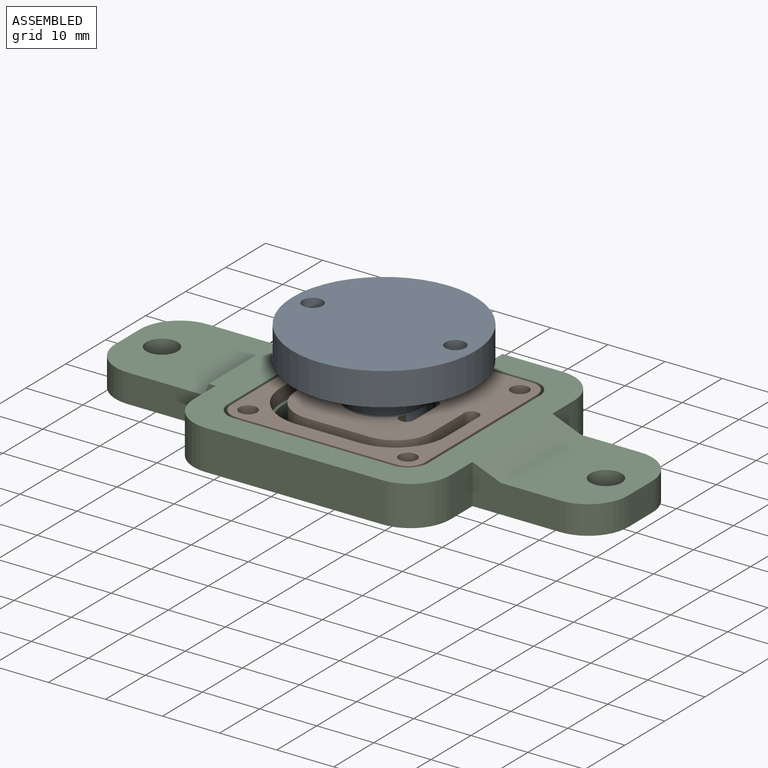
[diagram: assembled view]
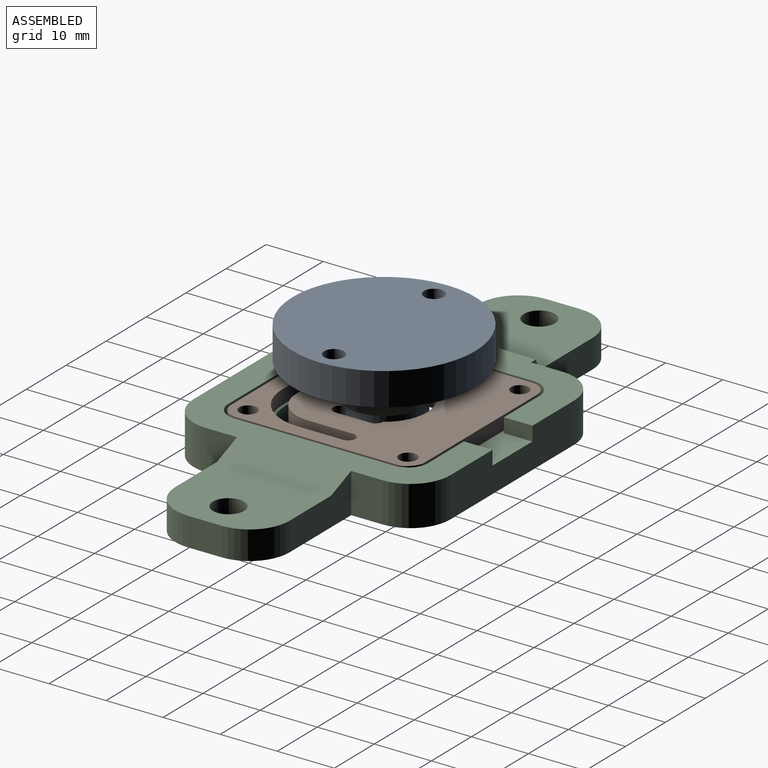
[diagram: assembled view, second angle]
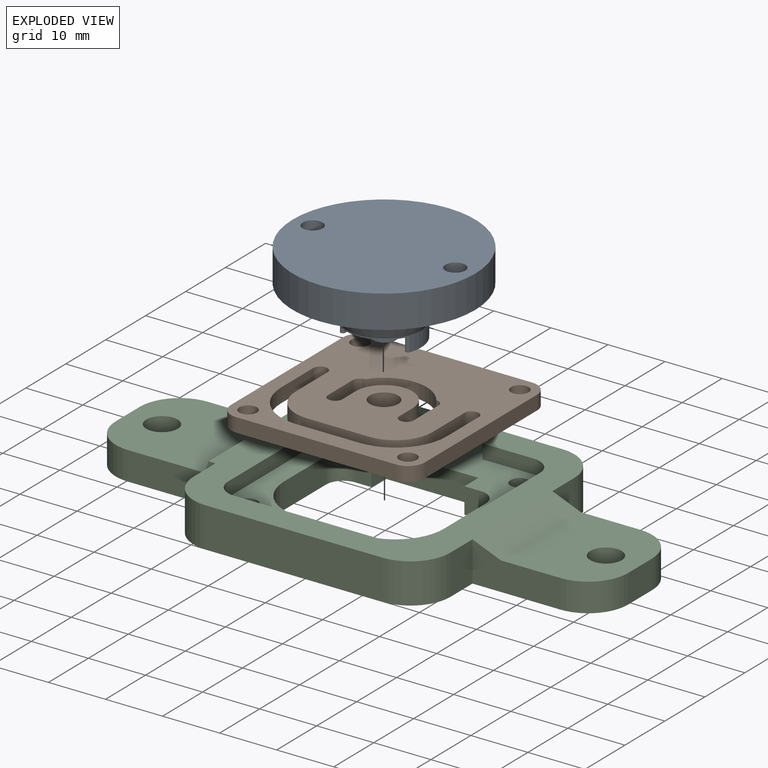
[diagram: exploded view]
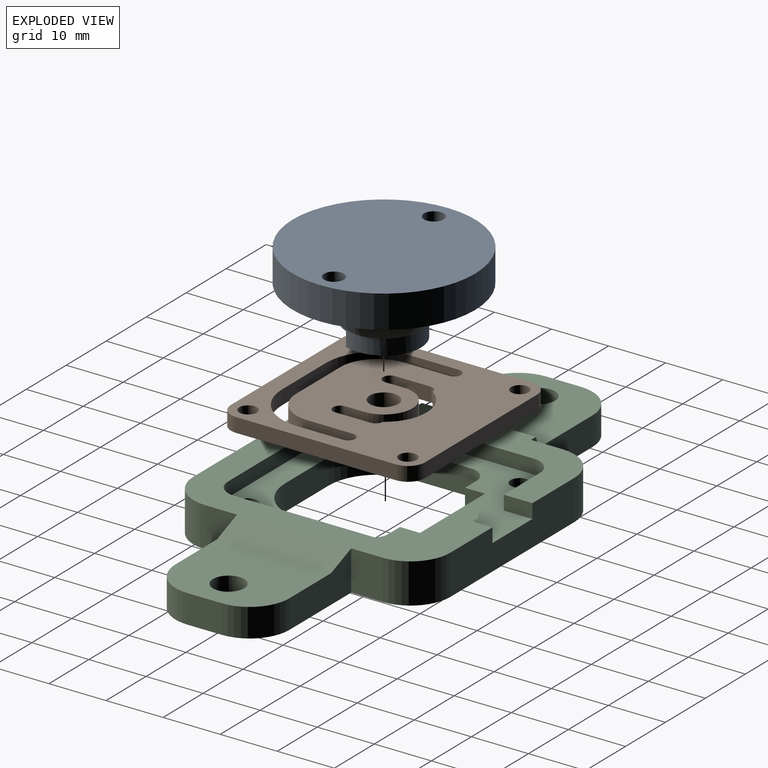
[diagram: exploded view, second angle]
ASSEMBLY  parts=3 mates=3
PART A: 18 faces, bbox 32x32x14.3 mm
  f0: plane 12.15x11.8mm, normal (0,0,-1), area 91.5mm2, adj f1,f3,f4,f5,f7,f8,f9
  f1: cylinder r=6.5mm len=13mm, axis (0,0,-1), area 71.1mm2, adj f0,f2,f8,f9,f15
  f2: plane 13x9.07mm, normal (0,0,-1), area 27.4mm2, adj f1,f3,f4,f5,f8,f9
  f3: plane 2.5x2.17mm, normal (-1,0,0), area 5.4mm2, adj f0,f2,f4,f8
  f4: cylinder r=5.3mm len=10.6mm, axis (0,0,1), area 41.6mm2, adj f0,f2,f3,f5
  f5: plane 2.5x2.17mm, normal (1,0,0), area 5.4mm2, adj f0,f2,f4,f9
  f6: plane 4.2x4.2mm, normal (0,0,-1), area 13.9mm2, adj f7
  f7: cylinder r=2.1mm len=4.2mm, axis (0,0,1), area 33mm2, adj f0,f6
  f8: cylinder r=0.4mm len=2.5mm, axis (0,0,-1), area 2.8mm2, adj f0,f1,f2,f3
  f9: cylinder r=0.4mm len=2.5mm, axis (0,0,-1), area 2.8mm2, adj f0,f1,f2,f5
  f10: cylinder r=1.75mm len=4.75mm, axis (0,0,-1), area 52.2mm2, adj f13,f17
  f11: cylinder r=1.75mm len=4.75mm, axis (0,0,-1), area 52.2mm2, adj f13,f16
  f12: cylinder r=16mm len=32mm, axis (0,0,-1), area 578.1mm2, adj f13,f14
  f13: plane 32x32mm, normal (0,0,1), area 785mm2, adj f10,f11,f12
  f14: plane 32x32mm, normal (0,0,-1), area 473.2mm2, adj f12,f15,f16,f17
  f15: cone r=9.5mm half-angle=27.3deg, axis (0,0,1), area 328.2mm2, adj f1,f14
  f16: cone r=2.75mm half-angle=45deg, axis (0,0,-1), area 20mm2, adj f11,f14
  f17: cone r=2.75mm half-angle=45deg, axis (0,0,-1), area 20mm2, adj f10,f14
PART B: 37 faces, bbox 34x34x2.5 mm
  f0: plane 28x2.5mm, normal (1,0,0), area 70mm2, adj f1,f34,f35,f36
  f1: cylinder r=3mm len=3mm, axis (0,0,-1), area 11.8mm2, adj f0,f2,f35,f36
  f2: plane 28x2.5mm, normal (0,1,0), area 70mm2, adj f1,f3,f35,f36
  f3: cylinder r=3mm len=3mm, axis (0,0,-1), area 11.8mm2, adj f2,f4,f35,f36
  f4: plane 28x2.5mm, normal (-1,0,0), area 70mm2, adj f3,f5,f35,f36
  f5: cylinder r=3mm len=3mm, axis (0,0,-1), area 11.8mm2, adj f4,f6,f35,f36
  f6: plane 28x2.5mm, normal (0,-1,0), area 70mm2, adj f5,f34,f35,f36
  f7: plane 3.29x2.5mm, normal (-1,0,0), area 8.2mm2, adj f8,f32,f35,f36
  f8: cylinder r=5mm len=10mm, axis (0,0,-1), area 39.3mm2, adj f7,f9,f35,f36
  f9: plane 3.29x2.5mm, normal (1,0,0), area 8.2mm2, adj f8,f10,f35,f36
  f10: cylinder r=1.25mm len=2.5mm, axis (0,0,-1), area 9.8mm2, adj f9,f11,f35,f36
  f11: plane 6.19x2.5mm, normal (-1,0,0), area 15.5mm2, adj f10,f12,f35,f36
  f12: cylinder r=1.25mm len=2.5mm, axis (0,0,-1), area 4.9mm2, adj f11,f13,f35,f36
  f13: cylinder r=7.5mm len=12.5mm, axis (0,0,-1), area 36.9mm2, adj f12,f14,f35,f36
  f14: cylinder r=1.25mm len=2.5mm, axis (0,0,-1), area 4.9mm2, adj f13,f15,f35,f36
  f15: plane 6.19x2.5mm, normal (1,0,0), area 15.5mm2, adj f14,f32,f35,f36
  f16: cylinder r=6.5mm len=6.5mm, axis (0,0,-1), area 25.5mm2, adj f17,f33,f35,f36
  f17: plane 8x2.5mm, normal (-1,0,0), area 20mm2, adj f16,f18,f35,f36
  f18: cylinder r=1.25mm len=2.5mm, axis (0,0,-1), area 9.8mm2, adj f17,f19,f35,f36
  f19: plane 8x2.5mm, normal (1,0,0), area 20mm2, adj f18,f20,f35,f36
  f20: cylinder r=9mm len=9mm, axis (0,0,-1), area 35.3mm2, adj f19,f21,f35,f36
  f21: plane 11x2.5mm, normal (0,-1,0), area 27.5mm2, adj f20,f22,f35,f36
  f22: cylinder r=9mm len=9mm, axis (0,0,-1), area 35.3mm2, adj f21,f23,f35,f36
  f23: plane 8x2.5mm, normal (-1,0,0), area 20mm2, adj f22,f24,f35,f36
  f24: cylinder r=1.25mm len=2.5mm, axis (0,0,-1), area 9.8mm2, adj f23,f25,f35,f36
  f25: plane 8x2.5mm, normal (1,0,0), area 20mm2, adj f24,f26,f35,f36
  f26: cylinder r=6.5mm len=6.5mm, axis (0,0,-1), area 25.5mm2, adj f25,f33,f35,f36
  f27: cylinder r=1.55mm len=3.1mm, axis (0,0,-1), area 24.3mm2, adj f35,f36
  f28: cylinder r=1.55mm len=3.1mm, axis (0,0,-1), area 24.3mm2, adj f35,f36
  f29: cylinder r=1.55mm len=3.1mm, axis (0,0,-1), area 24.3mm2, adj f35,f36
  f30: cylinder r=1.55mm len=3.1mm, axis (0,0,-1), area 24.3mm2, adj f35,f36
  f31: cylinder r=2.5mm len=5mm, axis (0,0,-1), area 39.3mm2, adj f35,f36
  f32: cylinder r=1.25mm len=2.5mm, axis (0,0,-1), area 9.8mm2, adj f7,f15,f35,f36
  f33: plane 11x2.5mm, normal (0,1,0), area 27.5mm2, adj f16,f26,f35,f36
  f34: cylinder r=3mm len=3mm, axis (0,0,-1), area 11.8mm2, adj f0,f6,f35,f36
  f35: plane 34x34mm, normal (0,0,1), area 892.1mm2, adj f0,f1,f2,f3,f4,f5,f6,f7
  f36: plane 34x34mm, normal (0,0,-1), area 892.1mm2, adj f0,f1,f2,f3,f4,f5,f6,f7
PART C: 84 faces, bbox 89.8x45x7 mm
  f0: cylinder r=1.65mm len=3.3mm, axis (0,0,1), area 17.6mm2, adj f41,f77
  f1: cylinder r=1.65mm len=3.3mm, axis (0,0,1), area 17.6mm2, adj f41,f70
  f2: cylinder r=1.65mm len=3.3mm, axis (0,0,1), area 17.6mm2, adj f41,f63
  f3: cylinder r=1.65mm len=3.3mm, axis (0,0,1), area 17.6mm2, adj f41,f56
  f4: plane 9x2.5mm, normal (0,1,0), area 22.5mm2, adj f9,f16,f41,f55
  f5: plane 7x5.5mm, normal (1,0,0), area 38.5mm2, adj f9,f18,f28,f48
  f6: plane 7x5.5mm, normal (-1,0,0), area 38.5mm2, adj f9,f20,f28,f49
  f7: cylinder r=2.75mm len=5.5mm, axis (0,0,1), area 86.4mm2, adj f28,f43
  f8: cylinder r=2.75mm len=5.5mm, axis (0,0,1), area 86.4mm2, adj f28,f42
  f9: plane 46.2x45mm, normal (0,0,1), area 742.5mm2, adj f4,f5,f6,f10,f11,f12,f13,f14
  f10: plane 28x2.5mm, normal (0,-1,0), area 70mm2, adj f9,f14,f15,f41
  f11: plane 28x2.5mm, normal (-1,0,0), area 70mm2, adj f9,f15,f16,f41
  f12: plane 9x2.5mm, normal (0,1,0), area 22.5mm2, adj f9,f17,f41,f54
  f13: plane 28x2.5mm, normal (1,0,0), area 70mm2, adj f9,f14,f17,f41
  f14: cylinder r=3.5mm len=3.5mm, axis (0,0,1), area 13.7mm2, adj f9,f10,f13,f41
  f15: cylinder r=3.5mm len=3.5mm, axis (0,0,1), area 13.7mm2, adj f9,f10,f11,f41
  f16: cylinder r=3.5mm len=3.5mm, axis (0,0,1), area 13.7mm2, adj f4,f9,f11,f41
  f17: cylinder r=3.5mm len=3.5mm, axis (0,0,1), area 13.7mm2, adj f9,f12,f13,f41
  f18: plane 15.39x7mm, normal (0,1,0), area 80.2mm2, adj f5,f9,f28,f42,f45,f53
  f19: plane 31x7mm, normal (0,1,0), area 217mm2, adj f9,f28,f48,f49
  f20: plane 15.39x7mm, normal (0,1,0), area 82mm2, adj f6,f28,f43,f46,f52
  f21: plane 6x5mm, normal (-1,0,0), area 30mm2, adj f28,f43,f46,f47
  f22: plane 15.39x7mm, normal (0,-1,0), area 82mm2, adj f23,f28,f43,f47,f52
  f23: plane 7x5.5mm, normal (-1,0,0), area 38.5mm2, adj f9,f22,f28,f50
  f24: plane 31x7mm, normal (0,-1,0), area 192mm2, adj f9,f28,f41,f50,f51,f54,f55
  f25: plane 7x5.5mm, normal (1,0,0), area 38.5mm2, adj f9,f26,f28,f51
  f26: plane 15.39x7mm, normal (0,-1,0), area 80.2mm2, adj f9,f25,f28,f42,f44,f53
  f27: plane 6x5mm, normal (1,0,0), area 30mm2, adj f28,f42,f44,f45
  f28: plane 89.78x45mm, normal (0,0,-1), area 2030.3mm2, adj f5,f6,f7,f8,f18,f19,f20,f21
  f29: cylinder r=8.5mm len=8.5mm, axis (0,0,1), area 60.1mm2, adj f28,f30,f40,f41
  f30: plane 11x4.5mm, normal (0,-1,0), area 49.5mm2, adj f28,f29,f31,f41
  f31: cylinder r=8.5mm len=8.5mm, axis (0,0,1), area 60.1mm2, adj f28,f30,f32,f41
  f32: plane 10.5x4.5mm, normal (-1,0,0), area 47.2mm2, adj f28,f31,f33,f41
  f33: cylinder r=3mm len=4.5mm, axis (0,0,1), area 21.2mm2, adj f28,f32,f34,f41
  f34: plane 4.5x2.87mm, normal (0,1,0), area 12.9mm2, adj f28,f33,f35,f41
  f35: plane 4.5x3.5mm, normal (-1,0,0), area 15.7mm2, adj f28,f34,f36,f41
  f36: plane 16.27x4.5mm, normal (0,1,0), area 73.2mm2, adj f28,f35,f37,f41
  f37: plane 4.5x3.5mm, normal (1,0,0), area 15.7mm2, adj f28,f36,f38,f41
  f38: plane 4.5x2.87mm, normal (0,1,0), area 12.9mm2, adj f28,f37,f39,f41
  f39: cylinder r=3mm len=4.5mm, axis (0,0,1), area 21.2mm2, adj f28,f38,f40,f41
  f40: plane 10.5x4.5mm, normal (1,0,0), area 47.2mm2, adj f28,f29,f39,f41
  f41: plane 40x35mm, normal (0,0,1), area 592.2mm2, adj f0,f1,f2,f3,f4,f10,f11,f12
  f42: plane 20.39x20mm, normal (0,0,1), area 363mm2, adj f8,f18,f26,f27,f44,f45,f53
  f43: plane 20x17.39mm, normal (0,0,1), area 303mm2, adj f7,f20,f21,f22,f46,f47,f52
  f44: cylinder r=7mm len=7mm, axis (0,0,-1), area 55mm2, adj f26,f27,f28,f42
  f45: cylinder r=7mm len=7mm, axis (0,0,1), area 55mm2, adj f18,f27,f28,f42
  f46: cylinder r=7mm len=7mm, axis (0,0,1), area 55mm2, adj f20,f21,f28,f43
  f47: cylinder r=7mm len=7mm, axis (0,0,-1), area 55mm2, adj f21,f22,f28,f43
  f48: cylinder r=7mm len=7mm, axis (0,0,1), area 77mm2, adj f5,f9,f19,f28
  f49: cylinder r=7mm len=7mm, axis (0,0,-1), area 77mm2, adj f6,f9,f19,f28
  f50: cylinder r=7mm len=7mm, axis (0,0,1), area 77mm2, adj f9,f23,f24,f28
  f51: cylinder r=7mm len=7mm, axis (0,0,-1), area 77mm2, adj f9,f24,f25,f28
  f52: plane 20x5mm, normal (-0.37,0,0.93), area 107.7mm2, adj f9,f20,f22,f43
  f53: plane 20x2mm, normal (0.93,0,0.37), area 43.1mm2, adj f9,f18,f26,f42
  f54: plane 5x2.5mm, normal (1,0,0), area 12.5mm2, adj f9,f12,f24,f41
  f55: plane 5x2.5mm, normal (-1,0,0), area 12.5mm2, adj f4,f9,f24,f41
  f56: plane 6.81x5.9mm, normal (0,0,-1), area 21.6mm2, adj f3,f57,f58,f59,f60,f61,f62
  f57: plane 2.95x2.8mm, normal (0.5,-0.87,0), area 9.5mm2, adj f28,f56,f58,f62
  f58: plane 2.95x2.8mm, normal (-0.5,-0.87,0), area 9.5mm2, adj f28,f56,f57,f59
  f59: plane 3.41x2.8mm, normal (-1,0,0), area 9.5mm2, adj f28,f56,f58,f60
  f60: plane 2.95x2.8mm, normal (-0.5,0.87,0), area 9.5mm2, adj f28,f56,f59,f61
  f61: plane 2.95x2.8mm, normal (0.5,0.87,0), area 9.5mm2, adj f28,f56,f60,f62
  f62: plane 3.41x2.8mm, normal (1,0,0), area 9.5mm2, adj f28,f56,f57,f61
  f63: plane 6.81x5.9mm, normal (0,0,-1), area 21.6mm2, adj f2,f64,f65,f66,f67,f68,f69
  f64: plane 2.95x2.8mm, normal (0.5,-0.87,0), area 9.5mm2, adj f28,f63,f65,f69
  f65: plane 2.95x2.8mm, normal (-0.5,-0.87,0), area 9.5mm2, adj f28,f63,f64,f66
  f66: plane 3.41x2.8mm, normal (-1,0,0), area 9.5mm2, adj f28,f63,f65,f67
  f67: plane 2.95x2.8mm, normal (-0.5,0.87,0), area 9.5mm2, adj f28,f63,f66,f68
  f68: plane 2.95x2.8mm, normal (0.5,0.87,0), area 9.5mm2, adj f28,f63,f67,f69
  f69: plane 3.41x2.8mm, normal (1,0,0), area 9.5mm2, adj f28,f63,f64,f68
  f70: plane 6.71x6.39mm, normal (0,0,-1), area 21.6mm2, adj f1,f71,f72,f73,f74,f75,f76
  f71: plane 3.2x2.8mm, normal (0.35,-0.94,0), area 9.5mm2, adj f28,f70,f72,f76
  f72: plane 2.8x2.62mm, normal (-0.64,-0.77,0), area 9.5mm2, adj f28,f70,f71,f73
  f73: plane 3.36x2.8mm, normal (-0.99,0.17,0), area 9.5mm2, adj f28,f70,f72,f74
  f74: plane 3.2x2.8mm, normal (-0.35,0.94,0), area 9.5mm2, adj f28,f70,f73,f75
  f75: plane 2.8x2.62mm, normal (0.64,0.77,0), area 9.5mm2, adj f28,f70,f74,f76
  f76: plane 3.36x2.8mm, normal (0.99,-0.17,0), area 9.5mm2, adj f28,f70,f71,f75
  f77: plane 6.71x6.39mm, normal (0,0,-1), area 21.6mm2, adj f0,f78,f79,f80,f81,f82,f83
  f78: plane 2.8x2.62mm, normal (0.64,-0.77,0), area 9.5mm2, adj f28,f77,f79,f83
  f79: plane 3.2x2.8mm, normal (-0.35,-0.94,0), area 9.5mm2, adj f28,f77,f78,f80
  f80: plane 3.36x2.8mm, normal (-0.99,-0.17,0), area 9.5mm2, adj f28,f77,f79,f81
  f81: plane 2.8x2.62mm, normal (-0.64,0.77,0), area 9.5mm2, adj f28,f77,f80,f82
  f82: plane 3.2x2.8mm, normal (0.35,0.94,0), area 9.5mm2, adj f28,f77,f81,f83
  f83: plane 3.36x2.8mm, normal (0.99,0.17,0), area 9.5mm2, adj f28,f77,f78,f82
PLACE A rot(axis=(0,0,-1),180deg) t=(0,-0.31,4.75)mm
PLACE B rot(axis=(0,0,1),180deg) t=(0,-0.31,4.5)mm
PLACE C rot(axis=(0,0,1),180deg) t=(0,-0.31,7)mm
MATE fastened B.f31 <-> A.f7  axis (0,0,-1) through (0,-0.31,7)mm
MATE revolute B.f29 <-> C.f2  axis (0,0,-1) through (-14,13.69,4.5)mm
MATE revolute B.f3 <-> C.f0  axis (0,0,-1) through (14,-14.31,4.5)mm
